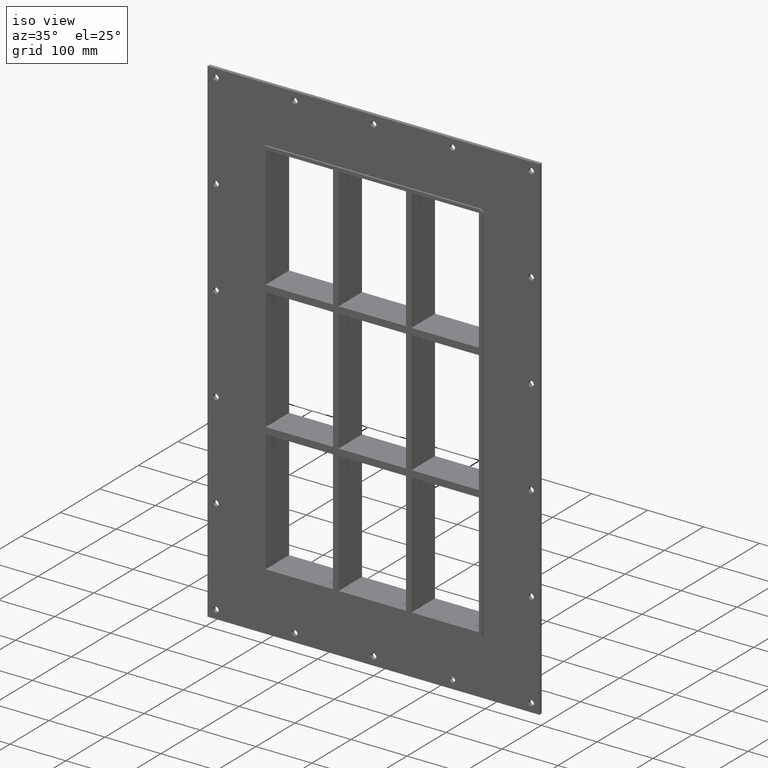
[diagram: clean part render]
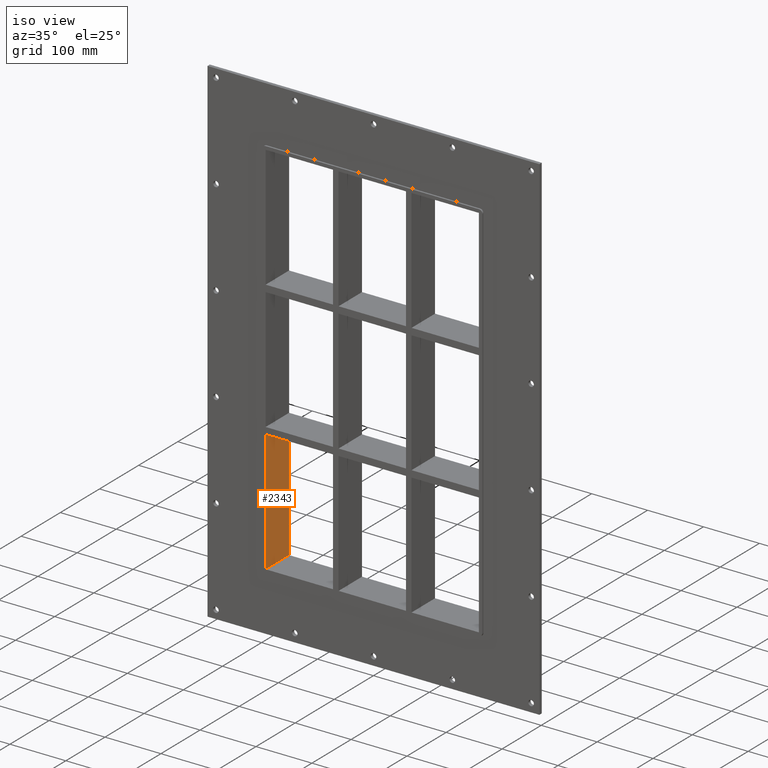
[diagram: same view with one face highlighted and labeled with its STEP entity id]
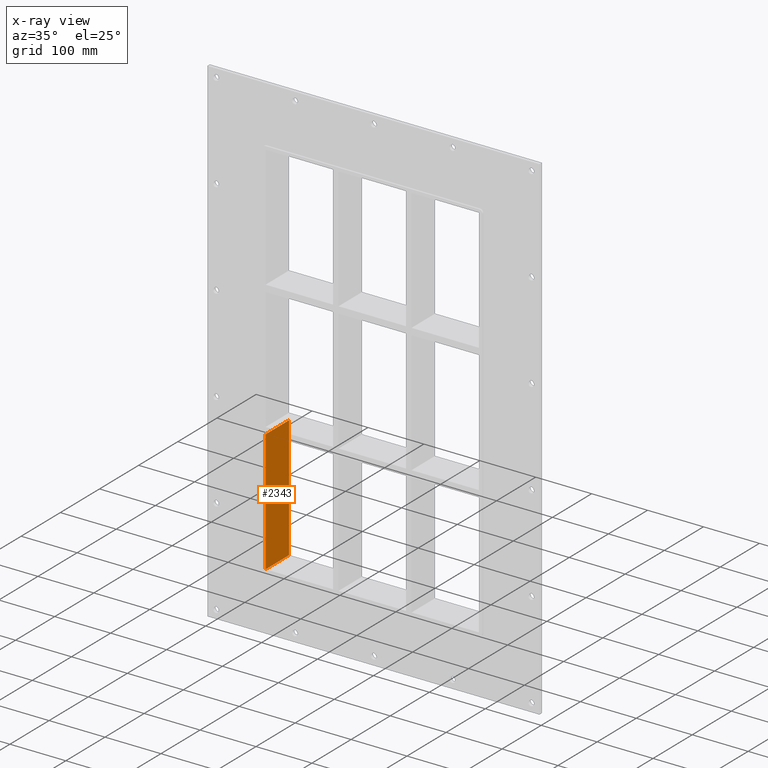
[diagram: x-ray of the same camera — body ghosted, the highlighted face saturated]
A machine part, iso view. The second image highlights one B-rep face of the part: STEP entity #2343.
The next image is the same camera in x-ray: the body ghosted, the highlighted face saturated — about 0% of this face is hidden behind the body in this view.
In plain terms, the highlighted planar face has unit normal (-1, 0, 0).
Its self-contained STEP definition (entity closure, byte-faithful):
#1218=CARTESIAN_POINT('',(-190.74999999999974,57.0,-121.00000000000932));
#1219=VERTEX_POINT('',#1218);
#1220=CARTESIAN_POINT('',(-190.75000000000006,57.0,-339.00000000000006));
#1221=VERTEX_POINT('',#1220);
#1222=CARTESIAN_POINT('',(-190.75000000000006,57.0,-121.00000000000932));
#1223=DIRECTION('',(0.0,0.0,-1.0));
#1224=VECTOR('',#1223,217.99999999999073);
#1225=LINE('',#1222,#1224);
#1226=EDGE_CURVE('',#1219,#1221,#1225,.T.);
#1683=CARTESIAN_POINT('',(-190.74999999999974,-3.0,-121.00000000000932));
#1684=VERTEX_POINT('',#1683);
#1699=CARTESIAN_POINT('',(-190.75000000000006,-3.0,-339.00000000000006));
#1700=VERTEX_POINT('',#1699);
#1707=CARTESIAN_POINT('',(-190.75000000000006,-3.0,-339.00000000000006));
#1708=DIRECTION('',(0.0,0.0,1.0));
#1709=VECTOR('',#1708,217.99999999999073);
#1710=LINE('',#1707,#1709);
#1711=EDGE_CURVE('',#1700,#1684,#1710,.T.);
#1798=CARTESIAN_POINT('',(-190.75000000000006,57.000000000000007,-121.00000000000929));
#1799=DIRECTION('',(0.0,-1.0,0.0));
#1800=VECTOR('',#1799,60.000000000000007);
#1801=LINE('',#1798,#1800);
#1802=EDGE_CURVE('',#1219,#1684,#1801,.T.);
#1914=CARTESIAN_POINT('',(-190.75000000000006,-3.0,-339.00000000000006));
#1915=DIRECTION('',(0.0,1.0,0.0));
#1916=VECTOR('',#1915,60.0);
#1917=LINE('',#1914,#1916);
#1918=EDGE_CURVE('',#1700,#1221,#1917,.T.);
#2332=CARTESIAN_POINT('',(-190.75000000000006,0.0,-339.00000000000006));
#2333=DIRECTION('',(-1.0,0.0,0.0));
#2334=DIRECTION('',(0.0,0.0,1.0));
#2335=AXIS2_PLACEMENT_3D('',#2332,#2333,#2334);
#2336=PLANE('',#2335);
#2337=ORIENTED_EDGE('',*,*,#1802,.T.);
#2338=ORIENTED_EDGE('',*,*,#1711,.F.);
#2339=ORIENTED_EDGE('',*,*,#1918,.T.);
#2340=ORIENTED_EDGE('',*,*,#1226,.F.);
#2341=EDGE_LOOP('',(#2337,#2338,#2339,#2340));
#2342=FACE_OUTER_BOUND('',#2341,.T.);
#2343=ADVANCED_FACE('',(#2342),#2336,.F.);